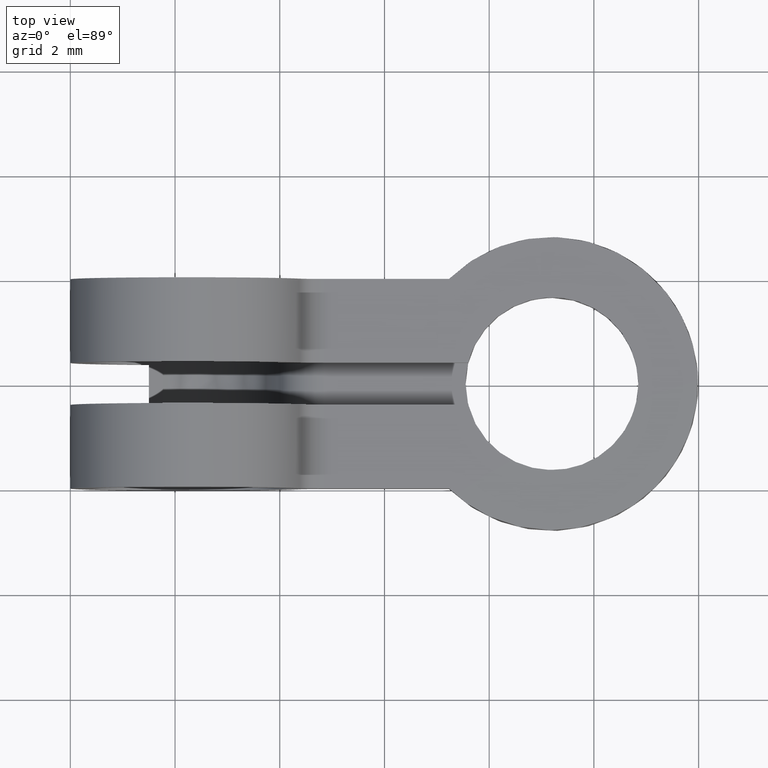
[diagram: clean part render]
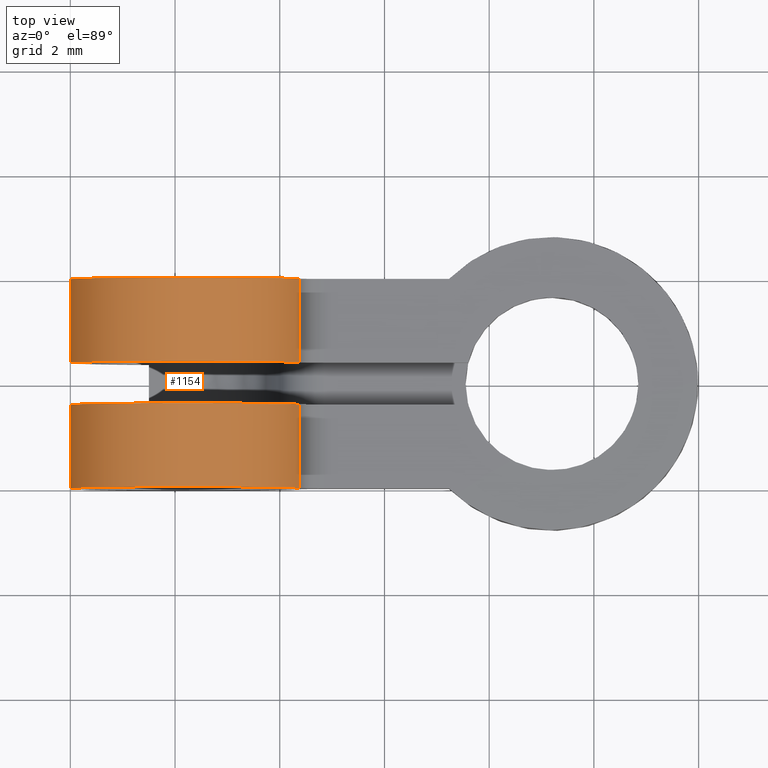
[diagram: same view with one face highlighted and labeled with its STEP entity id]
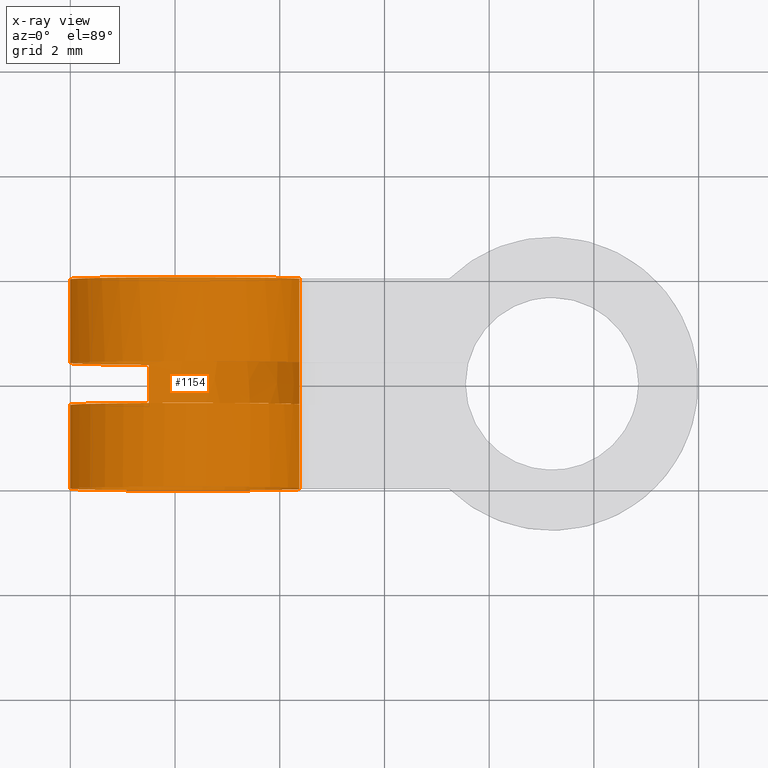
[diagram: x-ray of the same camera — body ghosted, the highlighted face saturated]
A machine part, top view. The second image highlights one B-rep face of the part: STEP entity #1154.
The next image is the same camera in x-ray: the body ghosted, the highlighted face saturated — about 0% of this face is hidden behind the body in this view.
In plain terms, the highlighted face is a freeform B-spline surface patch.
Its self-contained STEP definition (entity closure, byte-faithful):
#241=CARTESIAN_POINT('',(-0.500000000000199,0.400000000000067,-2.121320343559570));
#242=VERTEX_POINT('',#241);
#303=CARTESIAN_POINT('',(2.374671048919270,0.399999999999956,0.740454545454545));
#304=VERTEX_POINT('',#303);
#318=CARTESIAN_POINT('',(2.374671048919270,0.399999999999956,0.740454545454545));
#319=CARTESIAN_POINT('',(1.784577730629924,0.400000000000067,2.433676900866554));
#320=CARTESIAN_POINT('',(0.002369296627667,0.400000000000067,2.236331602143860));
#321=CARTESIAN_POINT('',(-1.779839137374589,0.400000000000067,2.038986303421166));
#322=CARTESIAN_POINT('',(-1.985195601071888,0.400000000000067,0.257683187167656));
#323=CARTESIAN_POINT('',(-2.190552064769187,0.400000000000067,-1.523619929085855));
#324=CARTESIAN_POINT('',(-0.500000000000202,0.400000000000067,-2.121320343559571));
#332=(BOUNDED_CURVE()B_SPLINE_CURVE(2,(#318,#319,#320,#321,#322,#323,#324),.UNSPECIFIED.,.F.,.U.)B_SPLINE_CURVE_WITH_KNOTS((3,2,2,3),(0.0,0.333333333333333,0.666666666666667,1.0),.UNSPECIFIED.)CURVE()GEOMETRIC_REPRESENTATION_ITEM()RATIONAL_B_SPLINE_CURVE((1.0,0.782037106484249,1.0,0.782037106484249,1.0,0.782037106484249,1.0))REPRESENTATION_ITEM(''));
#333=EDGE_CURVE('',#304,#242,#332,.T.);
#343=CARTESIAN_POINT('',(-0.500000000000199,-0.400000000000067,-2.121320343559570));
#344=VERTEX_POINT('',#343);
#345=CARTESIAN_POINT('',(2.374671048919270,-0.400000000000178,0.740454545454545));
#346=VERTEX_POINT('',#345);
#347=CARTESIAN_POINT('',(-0.500000000000199,-0.400000000000067,-2.121320343559572));
#348=CARTESIAN_POINT('',(-2.190552064769185,-0.400000000000067,-1.523619929085859));
#349=CARTESIAN_POINT('',(-1.985195601071888,-0.400000000000067,0.257683187167652));
#350=CARTESIAN_POINT('',(-1.779839137374592,-0.400000000000067,2.038986303421163));
#351=CARTESIAN_POINT('',(0.002369296627665,-0.400000000000067,2.236331602143860));
#352=CARTESIAN_POINT('',(1.784577730629923,-0.400000000000067,2.433676900866556));
#353=CARTESIAN_POINT('',(2.374671048919270,-0.400000000000178,0.740454545454545));
#361=(BOUNDED_CURVE()B_SPLINE_CURVE(2,(#347,#348,#349,#350,#351,#352,#353),.UNSPECIFIED.,.F.,.U.)B_SPLINE_CURVE_WITH_KNOTS((3,2,2,3),(0.0,0.333333333333333,0.666666666666667,1.0),.UNSPECIFIED.)CURVE()GEOMETRIC_REPRESENTATION_ITEM()RATIONAL_B_SPLINE_CURVE((1.0,0.782037106484249,1.0,0.782037106484249,1.0,0.782037106484249,1.0))REPRESENTATION_ITEM(''));
#362=EDGE_CURVE('',#344,#346,#361,.T.);
#447=CARTESIAN_POINT('',(-0.500000000000199,0.400000000000067,-2.121320343559570));
#448=CARTESIAN_POINT('',(-0.500000000000199,-0.400000000000067,-2.121320343559570));
#449=QUASI_UNIFORM_CURVE('',1,(#447,#448),.UNSPECIFIED.,.F.,.U.);
#450=EDGE_CURVE('',#242,#344,#449,.T.);
#883=CARTESIAN_POINT('',(2.374671048919270,-2.0,0.740454545454545));
#884=VERTEX_POINT('',#883);
#898=CARTESIAN_POINT('',(2.374671048919270,-2.0,-0.740454545454546));
#899=VERTEX_POINT('',#898);
#900=CARTESIAN_POINT('',(2.374671048919268,-2.0,0.740454545454545));
#901=CARTESIAN_POINT('',(1.749013795157799,-2.000000000000000,2.535724574889370));
#902=CARTESIAN_POINT('',(-0.125493102421101,-2.0,2.218446512772886));
#903=CARTESIAN_POINT('',(-2.000000000000000,-2.000000000000000,1.901168450656402));
#904=CARTESIAN_POINT('',(-2.0,-2.0,0.0));
#905=CARTESIAN_POINT('',(-2.000000000000000,-2.000000000000000,-1.901168450656400));
#906=CARTESIAN_POINT('',(-0.125493102421102,-2.0,-2.218446512772885));
#907=CARTESIAN_POINT('',(1.749013795157797,-2.000000000000000,-2.535724574889370));
#908=CARTESIAN_POINT('',(2.374671048919267,-2.0,-0.740454545454546));
#916=(BOUNDED_CURVE()B_SPLINE_CURVE(2,(#900,#901,#902,#903,#904,#905,#906,#907,#908),.UNSPECIFIED.,.F.,.U.)B_SPLINE_CURVE_WITH_KNOTS((3,2,2,2,3),(0.0,0.250000000000000,0.500000000000000,0.750000000000000,1.0),.UNSPECIFIED.)CURVE()GEOMETRIC_REPRESENTATION_ITEM()RATIONAL_B_SPLINE_CURVE((1.0,0.763834348304090,1.0,0.763834348304090,1.0,0.763834348304090,1.0,0.763834348304090,1.0))REPRESENTATION_ITEM(''));
#917=EDGE_CURVE('',#884,#899,#916,.T.);
#991=CARTESIAN_POINT('',(2.374671048919270,1.999999999999780,-0.740454545454546));
#992=VERTEX_POINT('',#991);
#1006=CARTESIAN_POINT('',(2.374671048919270,1.999999999999780,0.740454545454545));
#1007=VERTEX_POINT('',#1006);
#1008=CARTESIAN_POINT('',(2.374671048919268,1.999999999999780,-0.740454545454545));
#1009=CARTESIAN_POINT('',(1.749013795157799,1.999999999999781,-2.535724574889370));
#1010=CARTESIAN_POINT('',(-0.125493102421101,1.999999999999780,-2.218446512772886));
#1011=CARTESIAN_POINT('',(-2.000000000000000,1.999999999999781,-1.901168450656402));
#1012=CARTESIAN_POINT('',(-2.0,1.999999999999780,0.0));
#1013=CARTESIAN_POINT('',(-2.000000000000000,1.999999999999781,1.901168450656400));
#1014=CARTESIAN_POINT('',(-0.125493102421102,1.999999999999780,2.218446512772885));
#1015=CARTESIAN_POINT('',(1.749013795157797,1.999999999999781,2.535724574889370));
#1016=CARTESIAN_POINT('',(2.374671048919267,1.999999999999780,0.740454545454546));
#1024=(BOUNDED_CURVE()B_SPLINE_CURVE(2,(#1008,#1009,#1010,#1011,#1012,#1013,#1014,#1015,#1016),.UNSPECIFIED.,.F.,.U.)B_SPLINE_CURVE_WITH_KNOTS((3,2,2,2,3),(0.0,0.250000000000000,0.500000000000000,0.750000000000000,1.0),.UNSPECIFIED.)CURVE()GEOMETRIC_REPRESENTATION_ITEM()RATIONAL_B_SPLINE_CURVE((1.0,0.763834348304090,1.0,0.763834348304090,1.0,0.763834348304090,1.0,0.763834348304090,1.0))REPRESENTATION_ITEM(''));
#1025=EDGE_CURVE('',#992,#1007,#1024,.T.);
#1076=CARTESIAN_POINT('',(2.374671048919270,-0.400000000000178,0.740454545454545));
#1077=CARTESIAN_POINT('',(2.374671048919270,-2.0,0.740454545454545));
#1078=QUASI_UNIFORM_CURVE('',1,(#1076,#1077),.UNSPECIFIED.,.F.,.U.);
#1079=EDGE_CURVE('',#346,#884,#1078,.T.);
#1099=CARTESIAN_POINT('',(2.374671048919270,1.999999999999780,-0.740454545454546));
#1100=CARTESIAN_POINT('',(2.374671048919270,-2.0,-0.740454545454546));
#1101=QUASI_UNIFORM_CURVE('',1,(#1099,#1100),.UNSPECIFIED.,.F.,.U.);
#1102=EDGE_CURVE('',#992,#899,#1101,.T.);
#1114=CARTESIAN_POINT('',(2.398370635418502,2.099999999999775,-0.668583287909215));
#1115=CARTESIAN_POINT('',(2.398370635418502,-2.102499999999995,-0.668583287909215));
#1116=CARTESIAN_POINT('',(1.817180050113453,2.099999999999775,-2.536133389192339));
#1117=CARTESIAN_POINT('',(1.817180050113453,-2.102499999999995,-2.536133389192339));
#1118=CARTESIAN_POINT('',(-0.113081277968008,2.099999999999775,-2.220511649505382));
#1119=CARTESIAN_POINT('',(-0.113081277968008,-2.102499999999995,-2.220511649505382));
#1120=CARTESIAN_POINT('',(-2.043342606049469,2.099999999999775,-1.904889909818426));
#1121=CARTESIAN_POINT('',(-2.043342606049469,-2.102499999999995,-1.904889909818426));
#1122=CARTESIAN_POINT('',(-1.999432930129204,2.099999999999775,0.050512303949986));
#1123=CARTESIAN_POINT('',(-1.999432930129204,-2.102499999999995,0.050512303949986));
#1124=CARTESIAN_POINT('',(-1.955523254208940,2.099999999999775,2.005914517718398));
#1125=CARTESIAN_POINT('',(-1.955523254208940,-2.102499999999995,2.005914517718398));
#1126=CARTESIAN_POINT('',(-0.013039834607529,2.099999999999775,2.234571557460095));
#1127=CARTESIAN_POINT('',(-0.013039834607529,-2.102499999999995,2.234571557460095));
#1128=CARTESIAN_POINT('',(1.929443584993882,2.099999999999775,2.463228597201795));
#1129=CARTESIAN_POINT('',(1.929443584993882,-2.102499999999995,2.463228597201795));
#1130=CARTESIAN_POINT('',(2.426216791212498,2.099999999999775,0.571472201987785));
#1131=CARTESIAN_POINT('',(2.426216791212498,-2.102499999999995,0.571472201987785));
#1139=(BOUNDED_SURFACE()B_SPLINE_SURFACE(1,2,((#1114,#1116,#1118,#1120,#1122,#1124,#1126,#1128,#1130),(#1115,#1117,#1119,#1121,#1123,#1125,#1127,#1129,#1131)),.UNSPECIFIED.,.F.,.F.,.U.)B_SPLINE_SURFACE_WITH_KNOTS((2,2),(3,2,2,2,3),(0.0,4.202499999999770),(0.0,3.364962115363239,6.729924230726478,10.094886346089719,13.459848461452960),.UNSPECIFIED.)GEOMETRIC_REPRESENTATION_ITEM()RATIONAL_B_SPLINE_SURFACE(((1.0,0.754709580222772,1.0,0.754709580222772,1.0,0.754709580222772,1.0,0.754709580222772,1.0),(1.0,0.754709580222772,1.0,0.754709580222772,1.0,0.754709580222772,1.0,0.754709580222772,1.0)))REPRESENTATION_ITEM('')SURFACE());
#1140=ORIENTED_EDGE('',*,*,#333,.F.);
#1141=CARTESIAN_POINT('',(2.374671048919270,1.999999999999780,0.740454545454545));
#1142=CARTESIAN_POINT('',(2.374671048919270,0.399999999999956,0.740454545454545));
#1143=QUASI_UNIFORM_CURVE('',1,(#1141,#1142),.UNSPECIFIED.,.F.,.U.);
#1144=EDGE_CURVE('',#1007,#304,#1143,.T.);
#1145=ORIENTED_EDGE('',*,*,#1144,.F.);
#1146=ORIENTED_EDGE('',*,*,#1025,.F.);
#1147=ORIENTED_EDGE('',*,*,#1102,.T.);
#1148=ORIENTED_EDGE('',*,*,#917,.F.);
#1149=ORIENTED_EDGE('',*,*,#1079,.F.);
#1150=ORIENTED_EDGE('',*,*,#362,.F.);
#1151=ORIENTED_EDGE('',*,*,#450,.F.);
#1152=EDGE_LOOP('',(#1140,#1145,#1146,#1147,#1148,#1149,#1150,#1151));
#1153=FACE_OUTER_BOUND('',#1152,.T.);
#1154=ADVANCED_FACE('',(#1153),#1139,.T.);